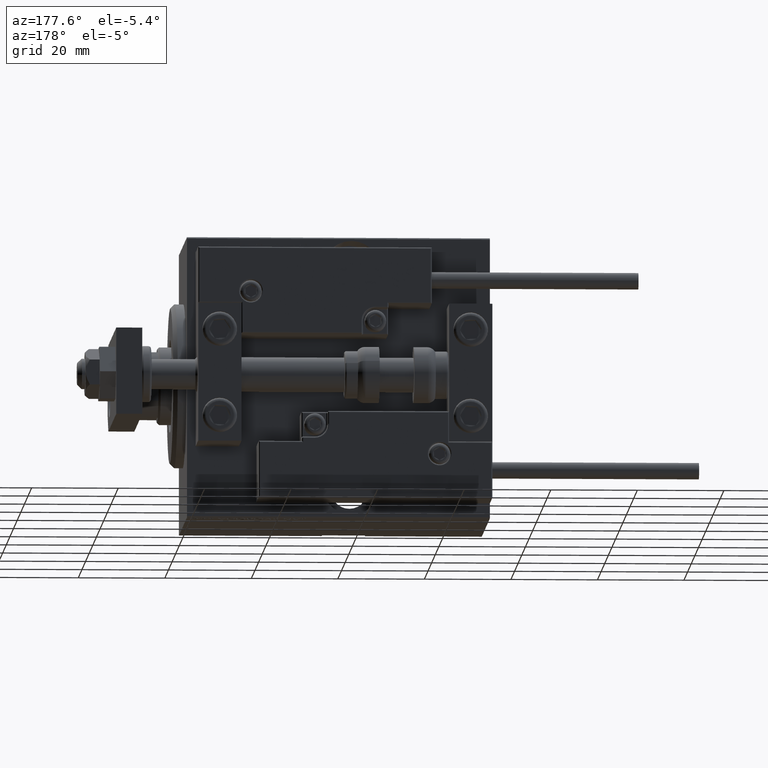
[diagram: clean part render]
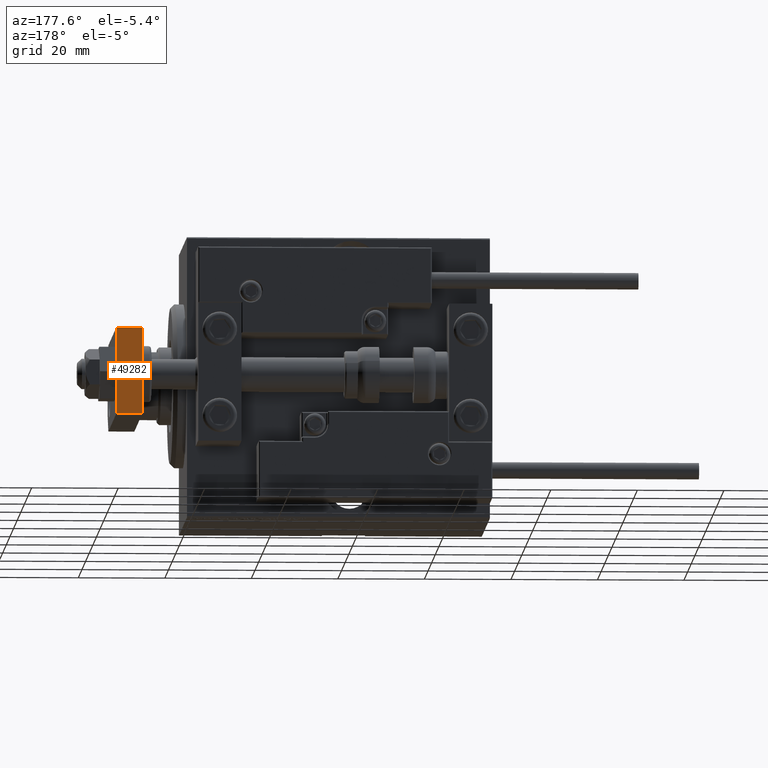
[diagram: same view with one face highlighted and labeled with its STEP entity id]
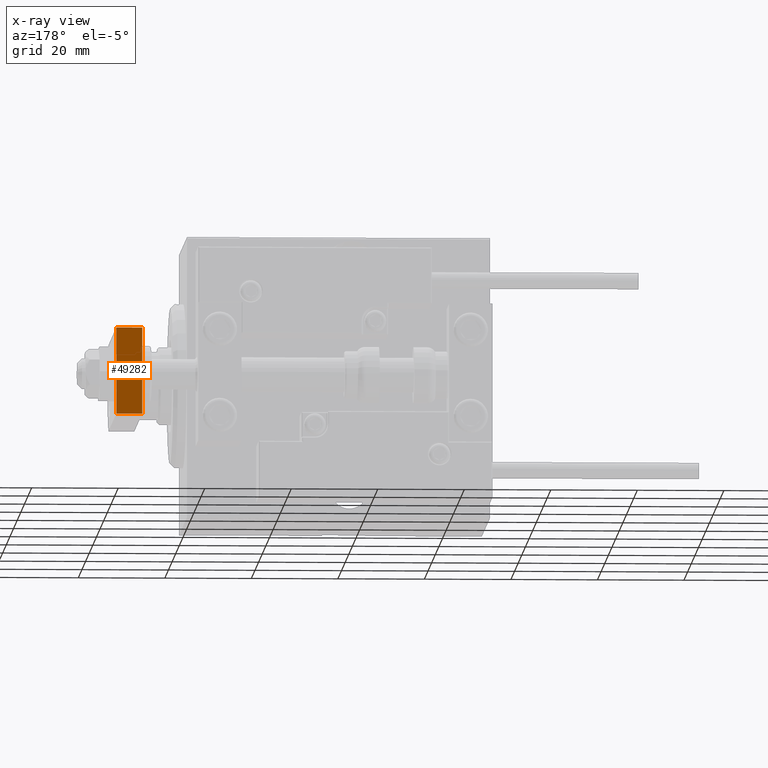
[diagram: x-ray of the same camera — body ghosted, the highlighted face saturated]
A machine part, auxiliary view. The second image highlights one B-rep face of the part: STEP entity #49282.
The next image is the same camera in x-ray: the body ghosted, the highlighted face saturated — about 0% of this face is hidden behind the body in this view.
In plain terms, the highlighted planar face has unit normal (0, -1, -0).
Its self-contained STEP definition (entity closure, byte-faithful):
#2042 = DIRECTION ( 'NONE',  ( 0.000000000000000000, -0.000000000000000000, -1.000000000000000000 ) ) ;
#2721 = LINE ( 'NONE', #6776, #34897 ) ;
#3612 = EDGE_CURVE ( 'NONE', #34265, #48697, #2721, .T. ) ;
#5106 = PLANE ( 'NONE',  #28485 ) ;
#5843 = DIRECTION ( 'NONE',  ( 0.000000000000000000, -1.000000000000000000, 0.000000000000000000 ) ) ;
#6776 = CARTESIAN_POINT ( 'NONE',  ( -10.00000000000000000, 48.00000000000000000, 6.000000000000000000 ) ) ;
#9051 = DIRECTION ( 'NONE',  ( -1.000000000000000000, 0.000000000000000000, 0.000000000000000000 ) ) ;
#9764 = CARTESIAN_POINT ( 'NONE',  ( -10.00000000000000000, 48.00000000000000000, 6.000000000000000000 ) ) ;
#11641 = DIRECTION ( 'NONE',  ( -0.000000000000000000, -0.000000000000000000, -1.000000000000000000 ) ) ;
#11857 = ORIENTED_EDGE ( 'NONE', *, *, #26883, .T. ) ;
#14353 = EDGE_CURVE ( 'NONE', #35210, #34265, #43592, .T. ) ;
#14697 = LINE ( 'NONE', #22747, #36751 ) ;
#16737 = FACE_OUTER_BOUND ( 'NONE', #45963, .T. ) ;
#17567 = CARTESIAN_POINT ( 'NONE',  ( 10.00000000000000178, 48.00000000000000000, 0.000000000000000000 ) ) ;
#19442 = CARTESIAN_POINT ( 'NONE',  ( -10.00000000000000000, 48.00000000000000000, 0.000000000000000000 ) ) ;
#20321 = LINE ( 'NONE', #35690, #39854 ) ;
#21441 = VECTOR ( 'NONE', #9051, 1000.000000000000000 ) ;
#22376 = CARTESIAN_POINT ( 'NONE',  ( 10.00000000000000178, 48.00000000000000000, 6.000000000000000000 ) ) ;
#22747 = CARTESIAN_POINT ( 'NONE',  ( 10.00000000000000178, 48.00000000000000000, 6.000000000000000000 ) ) ;
#23814 = EDGE_CURVE ( 'NONE', #37490, #48697, #20321, .T. ) ;
#26350 = ORIENTED_EDGE ( 'NONE', *, *, #23814, .T. ) ;
#26883 = EDGE_CURVE ( 'NONE', #35210, #37490, #14697, .T. ) ;
#28205 = ORIENTED_EDGE ( 'NONE', *, *, #3612, .F. ) ;
#28485 = AXIS2_PLACEMENT_3D ( 'NONE', #32100, #5843, #2042 ) ;
#29736 = DIRECTION ( 'NONE',  ( -0.000000000000000000, -0.000000000000000000, -1.000000000000000000 ) ) ;
#31920 = DIRECTION ( 'NONE',  ( -1.000000000000000000, 0.000000000000000000, 0.000000000000000000 ) ) ;
#32100 = CARTESIAN_POINT ( 'NONE',  ( 10.00000000000000178, 48.00000000000000000, 6.000000000000000000 ) ) ;
#34265 = VERTEX_POINT ( 'NONE', #9764 ) ;
#34897 = VECTOR ( 'NONE', #29736, 1000.000000000000000 ) ;
#35210 = VERTEX_POINT ( 'NONE', #22376 ) ;
#35690 = CARTESIAN_POINT ( 'NONE',  ( 10.00000000000000178, 48.00000000000000000, 0.000000000000000000 ) ) ;
#36045 = ORIENTED_EDGE ( 'NONE', *, *, #14353, .F. ) ;
#36269 = CARTESIAN_POINT ( 'NONE',  ( 10.00000000000000178, 48.00000000000000000, 6.000000000000000000 ) ) ;
#36751 = VECTOR ( 'NONE', #11641, 1000.000000000000000 ) ;
#37490 = VERTEX_POINT ( 'NONE', #17567 ) ;
#39854 = VECTOR ( 'NONE', #31920, 1000.000000000000000 ) ;
#43592 = LINE ( 'NONE', #36269, #21441 ) ;
#45963 = EDGE_LOOP ( 'NONE', ( #26350, #28205, #36045, #11857 ) ) ;
#48697 = VERTEX_POINT ( 'NONE', #19442 ) ;
#49282 = ADVANCED_FACE ( 'NONE', ( #16737 ), #5106, .F. ) ;